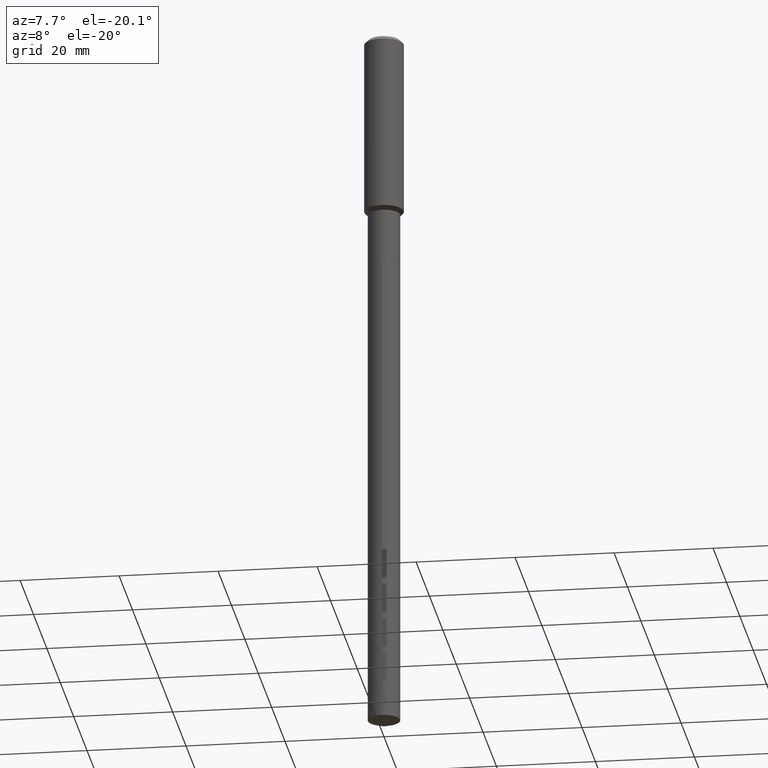
[diagram: clean part render]
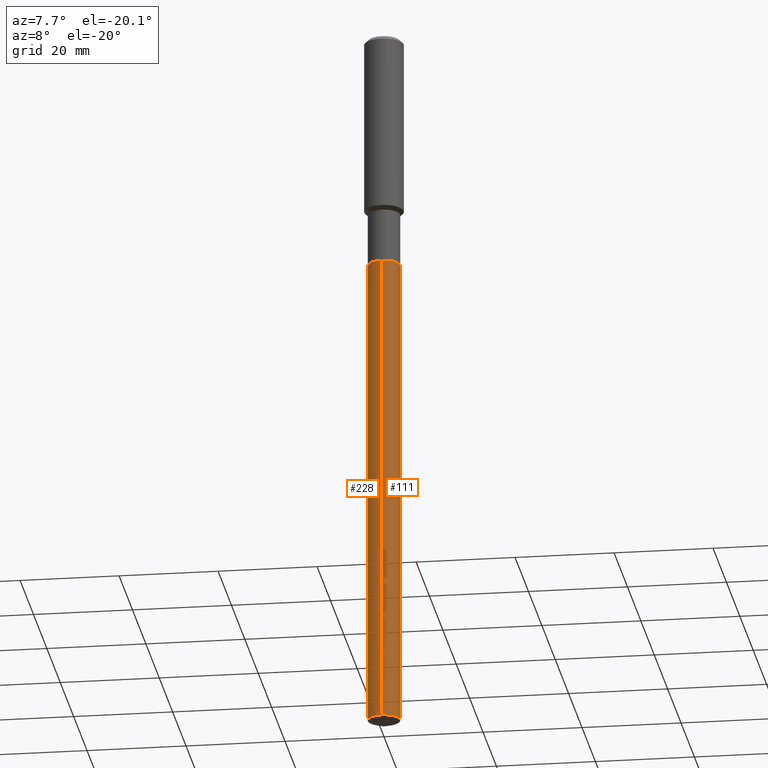
[diagram: same view with one multi-face feature highlighted, each face labeled with its STEP entity id]
A machine part, auxiliary view. The highlighted faces form ONE feature: a constant-radius fillet chain: 2 tangent blend faces with common blend radius 3.2639 mm. The faces share edges in the B-rep.
Their STEP definitions:
[1] entity #228 (Cylinder):
#8 = CIRCLE ( 'NONE', #63, 0.1285000000000000031 ) ;
#11 = VERTEX_POINT ( 'NONE', #265 ) ;
#63 = AXIS2_PLACEMENT_3D ( 'NONE', #266, #336, #166 ) ;
#66 = FACE_OUTER_BOUND ( 'NONE', #73, .T. ) ;
#73 = EDGE_LOOP ( 'NONE', ( #158, #190, #291, #118 ) ) ;
#79 = VERTEX_POINT ( 'NONE', #380 ) ;
#80 = LINE ( 'NONE', #467, #399 ) ;
#83 = CARTESIAN_POINT ( 'NONE',  ( -8.973107040826392265E-16, -0.1285000000000065812, -1.881599999999999495 ) ) ;
#93 = VERTEX_POINT ( 'NONE', #174 ) ;
#96 = CYLINDRICAL_SURFACE ( 'NONE', #475, 0.1285000000000000031 ) ;
#118 = ORIENTED_EDGE ( 'NONE', *, *, #469, .F. ) ;
#143 = DIRECTION ( 'NONE',  ( -6.982962677686265922E-15, -1.000000000000000000, 0.000000000000000000 ) ) ;
#158 = ORIENTED_EDGE ( 'NONE', *, *, #449, .F. ) ;
#166 = DIRECTION ( 'NONE',  ( -6.982962677686265922E-15, -1.000000000000000000, 4.251903492084456561E-15 ) ) ;
#168 = DIRECTION ( 'NONE',  ( -2.445562745369690193E-29, 3.491346812584178564E-15, 1.000000000000000000 ) ) ;
#174 = CARTESIAN_POINT ( 'NONE',  ( 9.130474154518677977E-16, 0.1284999999999800746, -5.697382503883480886 ) ) ;
#185 = EDGE_CURVE ( 'NONE', #93, #296, #432, .T. ) ;
#190 = ORIENTED_EDGE ( 'NONE', *, *, #185, .T. ) ;
#211 = DIRECTION ( 'NONE',  ( -2.445562745369690193E-29, 3.491346812584178564E-15, 1.000000000000000000 ) ) ;
#228 = ADVANCED_FACE ( 'NONE', ( #66 ), #96, .T. ) ;
#240 = DIRECTION ( 'NONE',  ( -6.982962677686265922E-15, -1.000000000000000000, 4.251903492084456561E-15 ) ) ;
#265 = CARTESIAN_POINT ( 'NONE',  ( -8.973107040826392265E-16, -0.1285000000000065812, -1.881599999999999495 ) ) ;
#266 = CARTESIAN_POINT ( 'NONE',  ( 4.601394105717952960E-29, -6.569571287167262554E-15, -1.881599999999999939 ) ) ;
#279 = VECTOR ( 'NONE', #347, 39.37007874015748143 ) ;
#282 = CARTESIAN_POINT ( 'NONE',  ( -8.973107040825455493E-16, -0.1285000000000198483, -5.697382503883480886 ) ) ;
#291 = ORIENTED_EDGE ( 'NONE', *, *, #391, .T. ) ;
#296 = VERTEX_POINT ( 'NONE', #282 ) ;
#336 = DIRECTION ( 'NONE',  ( -2.445562745369690193E-29, 3.491346812584178564E-15, 1.000000000000000000 ) ) ;
#347 = DIRECTION ( 'NONE',  ( -2.445562745369690193E-29, 3.491346812584178564E-15, 1.000000000000000000 ) ) ;
#380 = CARTESIAN_POINT ( 'NONE',  ( 9.130474154518683893E-16, 0.1284999999999934250, -1.881600000000000605 ) ) ;
#386 = DIRECTION ( 'NONE',  ( -2.445562745369690193E-29, 3.491346812584178564E-15, 1.000000000000000000 ) ) ;
#391 = EDGE_CURVE ( 'NONE', #296, #11, #425, .T. ) ;
#399 = VECTOR ( 'NONE', #386, 39.37007874015748143 ) ;
#425 = LINE ( 'NONE', #83, #279 ) ;
#432 = CIRCLE ( 'NONE', #489, 0.1285000000000000031 ) ;
#443 = CARTESIAN_POINT ( 'NONE',  ( 1.393312964164886599E-28, -1.989179136961532804E-14, -5.697382503883480886 ) ) ;
#449 = EDGE_CURVE ( 'NONE', #93, #79, #80, .T. ) ;
#467 = CARTESIAN_POINT ( 'NONE',  ( 9.130474154517747121E-16, 0.1284999999999934250, -1.881600000000000605 ) ) ;
#469 = EDGE_CURVE ( 'NONE', #79, #11, #8, .T. ) ;
#475 = AXIS2_PLACEMENT_3D ( 'NONE', #485, #211, #240 ) ;
#485 = CARTESIAN_POINT ( 'NONE',  ( 4.601394105717952960E-29, -6.569571287167262554E-15, -1.881599999999999939 ) ) ;
#489 = AXIS2_PLACEMENT_3D ( 'NONE', #443, #168, #143 ) ;
[2] entity #111 (Cylinder):
#11 = VERTEX_POINT ( 'NONE', #265 ) ;
#13 = ORIENTED_EDGE ( 'NONE', *, *, #318, .T. ) ;
#24 = AXIS2_PLACEMENT_3D ( 'NONE', #314, #25, #209 ) ;
#25 = DIRECTION ( 'NONE',  ( -2.445562745369690193E-29, 3.491346812584178564E-15, 1.000000000000000000 ) ) ;
#62 = CIRCLE ( 'NONE', #149, 0.1285000000000000031 ) ;
#71 = ORIENTED_EDGE ( 'NONE', *, *, #449, .T. ) ;
#78 = DIRECTION ( 'NONE',  ( -6.982962677686265922E-15, -1.000000000000000000, 4.251903492084456561E-15 ) ) ;
#79 = VERTEX_POINT ( 'NONE', #380 ) ;
#80 = LINE ( 'NONE', #467, #399 ) ;
#83 = CARTESIAN_POINT ( 'NONE',  ( -8.973107040826392265E-16, -0.1285000000000065812, -1.881599999999999495 ) ) ;
#85 = CARTESIAN_POINT ( 'NONE',  ( 4.601394105717952960E-29, -6.569571287167262554E-15, -1.881599999999999939 ) ) ;
#93 = VERTEX_POINT ( 'NONE', #174 ) ;
#108 = AXIS2_PLACEMENT_3D ( 'NONE', #85, #234, #78 ) ;
#111 = ADVANCED_FACE ( 'NONE', ( #309 ), #320, .T. ) ;
#149 = AXIS2_PLACEMENT_3D ( 'NONE', #458, #218, #184 ) ;
#152 = ORIENTED_EDGE ( 'NONE', *, *, #391, .F. ) ;
#161 = EDGE_LOOP ( 'NONE', ( #13, #71, #182, #152 ) ) ;
#174 = CARTESIAN_POINT ( 'NONE',  ( 9.130474154518677977E-16, 0.1284999999999800746, -5.697382503883480886 ) ) ;
#182 = ORIENTED_EDGE ( 'NONE', *, *, #484, .F. ) ;
#184 = DIRECTION ( 'NONE',  ( -6.982962677686265922E-15, -1.000000000000000000, 0.000000000000000000 ) ) ;
#209 = DIRECTION ( 'NONE',  ( -6.982962677686265922E-15, -1.000000000000000000, 4.251903492084456561E-15 ) ) ;
#218 = DIRECTION ( 'NONE',  ( -2.445562745369690193E-29, 3.491346812584178564E-15, 1.000000000000000000 ) ) ;
#234 = DIRECTION ( 'NONE',  ( -2.445562745369690193E-29, 3.491346812584178564E-15, 1.000000000000000000 ) ) ;
#265 = CARTESIAN_POINT ( 'NONE',  ( -8.973107040826392265E-16, -0.1285000000000065812, -1.881599999999999495 ) ) ;
#279 = VECTOR ( 'NONE', #347, 39.37007874015748143 ) ;
#282 = CARTESIAN_POINT ( 'NONE',  ( -8.973107040825455493E-16, -0.1285000000000198483, -5.697382503883480886 ) ) ;
#296 = VERTEX_POINT ( 'NONE', #282 ) ;
#309 = FACE_OUTER_BOUND ( 'NONE', #161, .T. ) ;
#314 = CARTESIAN_POINT ( 'NONE',  ( 4.601394105717952960E-29, -6.569571287167262554E-15, -1.881599999999999939 ) ) ;
#318 = EDGE_CURVE ( 'NONE', #296, #93, #62, .T. ) ;
#320 = CYLINDRICAL_SURFACE ( 'NONE', #24, 0.1285000000000000031 ) ;
#347 = DIRECTION ( 'NONE',  ( -2.445562745369690193E-29, 3.491346812584178564E-15, 1.000000000000000000 ) ) ;
#380 = CARTESIAN_POINT ( 'NONE',  ( 9.130474154518683893E-16, 0.1284999999999934250, -1.881600000000000605 ) ) ;
#386 = DIRECTION ( 'NONE',  ( -2.445562745369690193E-29, 3.491346812584178564E-15, 1.000000000000000000 ) ) ;
#391 = EDGE_CURVE ( 'NONE', #296, #11, #425, .T. ) ;
#399 = VECTOR ( 'NONE', #386, 39.37007874015748143 ) ;
#425 = LINE ( 'NONE', #83, #279 ) ;
#444 = CIRCLE ( 'NONE', #108, 0.1285000000000000031 ) ;
#449 = EDGE_CURVE ( 'NONE', #93, #79, #80, .T. ) ;
#458 = CARTESIAN_POINT ( 'NONE',  ( 1.393312964164886599E-28, -1.989179136961532804E-14, -5.697382503883480886 ) ) ;
#467 = CARTESIAN_POINT ( 'NONE',  ( 9.130474154517747121E-16, 0.1284999999999934250, -1.881600000000000605 ) ) ;
#484 = EDGE_CURVE ( 'NONE', #11, #79, #444, .T. ) ;